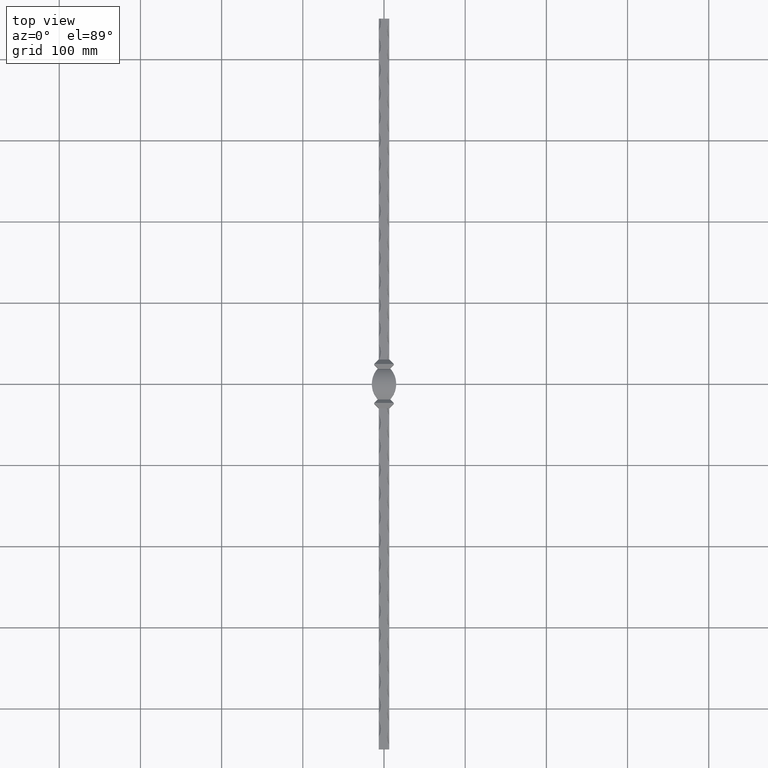
[diagram: clean part render]
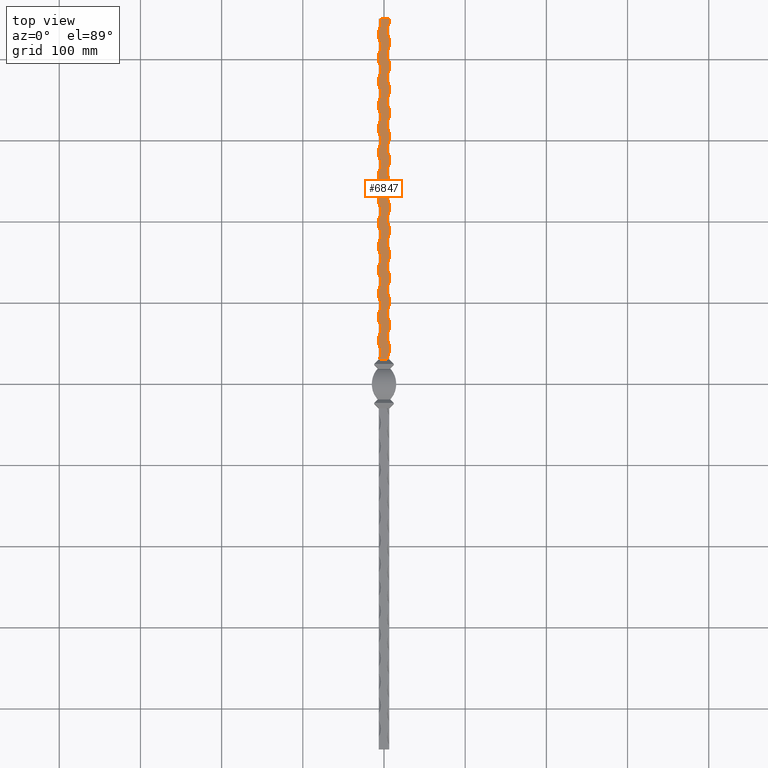
[diagram: same view with one face highlighted and labeled with its STEP entity id]
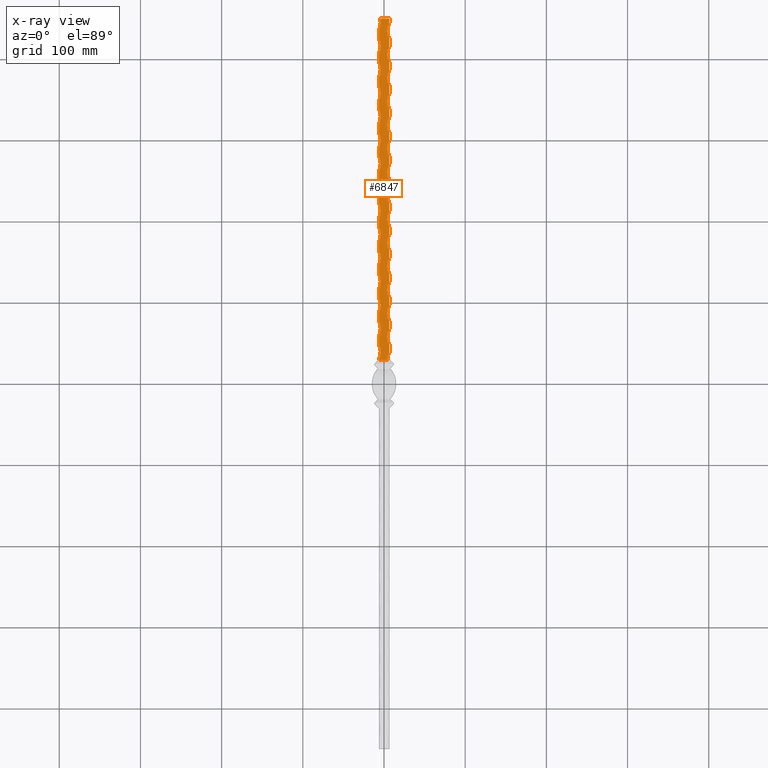
[diagram: x-ray of the same camera — body ghosted, the highlighted face saturated]
A machine part, top view. The second image highlights one B-rep face of the part: STEP entity #6847.
The next image is the same camera in x-ray: the body ghosted, the highlighted face saturated — about 0% of this face is hidden behind the body in this view.
In plain terms, the highlighted planar face has unit normal (0, 0, -1).
Its self-contained STEP definition (entity closure, byte-faithful):
#3 = DIRECTION ( 'NONE',  ( -0.000000000000000000, -0.000000000000000000, 1.000000000000000000 ) ) ;
#54 = DIRECTION ( 'NONE',  ( -1.000000000000000000, 0.000000000000000000, 0.000000000000000000 ) ) ;
#59 = CARTESIAN_POINT ( 'NONE',  ( -6.499999999999999112, 368.0000000000000568, 6.500000000000000888 ) ) ;
#71 = VECTOR ( 'NONE', #3126, 1000.000000000000000 ) ;
#76 = CIRCLE ( 'NONE', #5606, 21.25000000000000000 ) ;
#80 = CARTESIAN_POINT ( 'NONE',  ( 6.500000000000000888, 309.0000000000000000, 6.500000000000000888 ) ) ;
#92 = DIRECTION ( 'NONE',  ( -0.000000000000000000, -0.000000000000000000, 1.000000000000000000 ) ) ;
#112 = DIRECTION ( 'NONE',  ( -0.000000000000000000, -1.000000000000000000, -0.000000000000000000 ) ) ;
#157 = CARTESIAN_POINT ( 'NONE',  ( 6.500000000000000888, 425.0000000000000000, 6.500000000000000888 ) ) ;
#181 = CARTESIAN_POINT ( 'NONE',  ( 6.499999999999999112, 270.9999999999999432, 6.500000000000000888 ) ) ;
#191 = DIRECTION ( 'NONE',  ( -1.000000000000000000, -1.959217102279688941E-15, 0.000000000000000000 ) ) ;
#209 = VECTOR ( 'NONE', #1374, 1000.000000000000000 ) ;
#222 = DIRECTION ( 'NONE',  ( -1.000000000000000000, 0.000000000000000000, 0.000000000000000000 ) ) ;
#237 = CARTESIAN_POINT ( 'NONE',  ( 6.499999999999999112, 328.9999999999999432, 6.500000000000000888 ) ) ;
#292 = VERTEX_POINT ( 'NONE', #15036 ) ;
#304 = CARTESIAN_POINT ( 'NONE',  ( -6.499999999999999112, 450.0000000000000000, 6.500000000000000888 ) ) ;
#308 = PLANE ( 'NONE',  #1086 ) ;
#338 = CARTESIAN_POINT ( 'NONE',  ( 6.499999999999999112, 212.9999999999999716, 6.500000000000000888 ) ) ;
#349 = CARTESIAN_POINT ( 'NONE',  ( -6.499999999999999112, 78.00000000000000000, 6.500000000000000888 ) ) ;
#387 = EDGE_CURVE ( 'NONE', #15503, #3756, #2526, .T. ) ;
#449 = EDGE_CURVE ( 'NONE', #4084, #12454, #6714, .T. ) ;
#460 = CARTESIAN_POINT ( 'NONE',  ( -6.499999999999999112, 165.0000000000000000, 6.500000000000000888 ) ) ;
#493 = ORIENTED_EDGE ( 'NONE', *, *, #5886, .F. ) ;
#581 = CARTESIAN_POINT ( 'NONE',  ( 6.499999999999999112, 241.9999999999999716, 6.500000000000000888 ) ) ;
#626 = EDGE_CURVE ( 'NONE', #8690, #10554, #5386, .T. ) ;
#630 = AXIS2_PLACEMENT_3D ( 'NONE', #15267, #2066, #15361 ) ;
#639 = EDGE_CURVE ( 'NONE', #13878, #6662, #6142, .T. ) ;
#642 = ORIENTED_EDGE ( 'NONE', *, *, #15107, .T. ) ;
#651 = CIRCLE ( 'NONE', #15653, 21.25000000000000000 ) ;
#692 = ORIENTED_EDGE ( 'NONE', *, *, #2809, .T. ) ;
#701 = ORIENTED_EDGE ( 'NONE', *, *, #8345, .T. ) ;
#724 = EDGE_CURVE ( 'NONE', #4471, #4863, #1575, .T. ) ;
#762 = CARTESIAN_POINT ( 'NONE',  ( -25.24999999999999645, 300.0000000000000000, 6.500000000000000888 ) ) ;
#809 = CIRCLE ( 'NONE', #11823, 21.25000000000000000 ) ;
#824 = CARTESIAN_POINT ( 'NONE',  ( -6.499999999999999112, 281.0000000000000000, 6.500000000000000888 ) ) ;
#837 = DIRECTION ( 'NONE',  ( -0.000000000000000000, -1.000000000000000000, -0.000000000000000000 ) ) ;
#849 = CARTESIAN_POINT ( 'NONE',  ( -6.499999999999999112, 450.0000000000000000, 6.500000000000000888 ) ) ;
#850 = CARTESIAN_POINT ( 'NONE',  ( -6.499999999999999112, 115.9999999999999716, 6.500000000000000888 ) ) ;
#895 = VECTOR ( 'NONE', #1279, 1000.000000000000000 ) ;
#912 = AXIS2_PLACEMENT_3D ( 'NONE', #6769, #11501, #12706 ) ;
#965 = AXIS2_PLACEMENT_3D ( 'NONE', #12686, #13906, #1658 ) ;
#974 = DIRECTION ( 'NONE',  ( -0.000000000000000000, -1.000000000000000000, -0.000000000000000000 ) ) ;
#1015 = VERTEX_POINT ( 'NONE', #7886 ) ;
#1051 = DIRECTION ( 'NONE',  ( -1.000000000000000000, 0.000000000000000000, 0.000000000000000000 ) ) ;
#1069 = CARTESIAN_POINT ( 'NONE',  ( -25.24999999999999645, 96.99999999999995737, 6.500000000000000888 ) ) ;
#1086 = AXIS2_PLACEMENT_3D ( 'NONE', #6382, #8811, #1539 ) ;
#1116 = ORIENTED_EDGE ( 'NONE', *, *, #2457, .F. ) ;
#1120 = CARTESIAN_POINT ( 'NONE',  ( -6.000000000000000000, 30.00000000000000000, 6.500000000000000888 ) ) ;
#1146 = DIRECTION ( 'NONE',  ( -0.000000000000000000, -1.000000000000000000, -0.000000000000000000 ) ) ;
#1167 = EDGE_CURVE ( 'NONE', #11740, #11138, #11443, .T. ) ;
#1199 = DIRECTION ( 'NONE',  ( -1.000000000000000000, 0.000000000000000000, 0.000000000000000000 ) ) ;
#1229 = DIRECTION ( 'NONE',  ( -0.000000000000000000, -0.000000000000000000, 1.000000000000000000 ) ) ;
#1253 = VERTEX_POINT ( 'NONE', #14549 ) ;
#1276 = CARTESIAN_POINT ( 'NONE',  ( 25.24999999999997513, 203.0000000000000000, 6.500000000000000888 ) ) ;
#1279 = DIRECTION ( 'NONE',  ( -0.000000000000000000, -1.000000000000000000, -0.000000000000000000 ) ) ;
#1294 = EDGE_CURVE ( 'NONE', #10274, #4008, #4011, .T. ) ;
#1351 = VECTOR ( 'NONE', #12162, 1000.000000000000000 ) ;
#1354 = VECTOR ( 'NONE', #837, 1000.000000000000000 ) ;
#1372 = VECTOR ( 'NONE', #1146, 1000.000000000000000 ) ;
#1374 = DIRECTION ( 'NONE',  ( -0.000000000000000000, -1.000000000000000000, -0.000000000000000000 ) ) ;
#1472 = DIRECTION ( 'NONE',  ( -1.000000000000000000, 0.000000000000000000, 0.000000000000000000 ) ) ;
#1483 = CARTESIAN_POINT ( 'NONE',  ( 6.499999999999999112, 96.99999999999995737, 6.500000000000000888 ) ) ;
#1497 = CARTESIAN_POINT ( 'NONE',  ( 6.500000000000000888, 450.0000000000000000, 6.500000000000000888 ) ) ;
#1502 = VERTEX_POINT ( 'NONE', #7423 ) ;
#1503 = CARTESIAN_POINT ( 'NONE',  ( -6.499999999999999112, 339.0000000000000000, 6.500000000000000888 ) ) ;
#1526 = ORIENTED_EDGE ( 'NONE', *, *, #12989, .T. ) ;
#1539 = DIRECTION ( 'NONE',  ( -1.000000000000000000, 0.000000000000000000, -0.000000000000000000 ) ) ;
#1542 = VERTEX_POINT ( 'NONE', #6064 ) ;
#1575 = CIRCLE ( 'NONE', #14526, 21.25000000000000000 ) ;
#1658 = DIRECTION ( 'NONE',  ( -1.000000000000000000, -5.224578939412504105E-15, 0.000000000000000000 ) ) ;
#1715 = ORIENTED_EDGE ( 'NONE', *, *, #3580, .T. ) ;
#1731 = ORIENTED_EDGE ( 'NONE', *, *, #626, .F. ) ;
#1752 = CARTESIAN_POINT ( 'NONE',  ( 6.500000000000000888, 450.0000000000000000, 6.500000000000000888 ) ) ;
#1770 = LINE ( 'NONE', #13818, #14295 ) ;
#1771 = ORIENTED_EDGE ( 'NONE', *, *, #7672, .T. ) ;
#1827 = ORIENTED_EDGE ( 'NONE', *, *, #8765, .F. ) ;
#1832 = CIRCLE ( 'NONE', #15202, 21.25000000000000000 ) ;
#1839 = VERTEX_POINT ( 'NONE', #5610 ) ;
#1844 = VECTOR ( 'NONE', #2579, 1000.000000000000000 ) ;
#1930 = VERTEX_POINT ( 'NONE', #157 ) ;
#1954 = VECTOR ( 'NONE', #5232, 1000.000000000000000 ) ;
#1962 = CARTESIAN_POINT ( 'NONE',  ( 25.24999999999997513, 29.00000000000000000, 6.500000000000000888 ) ) ;
#2006 = EDGE_CURVE ( 'NONE', #11968, #1542, #4779, .T. ) ;
#2051 = CARTESIAN_POINT ( 'NONE',  ( 25.24999999999997513, 406.0000000000000000, 6.500000000000000888 ) ) ;
#2066 = DIRECTION ( 'NONE',  ( -0.000000000000000000, -0.000000000000000000, 1.000000000000000000 ) ) ;
#2069 = LINE ( 'NONE', #14992, #13652 ) ;
#2078 = EDGE_CURVE ( 'NONE', #1015, #9566, #11611, .T. ) ;
#2091 = ORIENTED_EDGE ( 'NONE', *, *, #8264, .F. ) ;
#2125 = AXIS2_PLACEMENT_3D ( 'NONE', #8965, #11523, #6530 ) ;
#2232 = CARTESIAN_POINT ( 'NONE',  ( 6.500000000000000888, 280.0000000000000000, 6.500000000000000888 ) ) ;
#2234 = CARTESIAN_POINT ( 'NONE',  ( 6.500000000000000888, 450.0000000000000000, 6.500000000000000888 ) ) ;
#2246 = AXIS2_PLACEMENT_3D ( 'NONE', #14334, #14480, #1051 ) ;
#2256 = VECTOR ( 'NONE', #974, 1000.000000000000000 ) ;
#2273 = DIRECTION ( 'NONE',  ( -0.000000000000000000, -1.000000000000000000, -0.000000000000000000 ) ) ;
#2296 = LINE ( 'NONE', #10191, #7811 ) ;
#2310 = VERTEX_POINT ( 'NONE', #850 ) ;
#2359 = ORIENTED_EDGE ( 'NONE', *, *, #12220, .F. ) ;
#2408 = ORIENTED_EDGE ( 'NONE', *, *, #10639, .T. ) ;
#2410 = VERTEX_POINT ( 'NONE', #9920 ) ;
#2426 = DIRECTION ( 'NONE',  ( -1.000000000000000000, -1.306144734853126026E-15, 0.000000000000000000 ) ) ;
#2457 = EDGE_CURVE ( 'NONE', #13269, #1253, #2296, .T. ) ;
#2483 = DIRECTION ( 'NONE',  ( -1.000000000000000000, 0.000000000000000000, 0.000000000000000000 ) ) ;
#2511 = EDGE_CURVE ( 'NONE', #13488, #2410, #15742, .T. ) ;
#2526 = LINE ( 'NONE', #2814, #13166 ) ;
#2579 = DIRECTION ( 'NONE',  ( -0.000000000000000000, -1.000000000000000000, -0.000000000000000000 ) ) ;
#2609 = DIRECTION ( 'NONE',  ( -1.000000000000000000, 0.000000000000000000, 0.000000000000000000 ) ) ;
#2731 = DIRECTION ( 'NONE',  ( -0.000000000000000000, -1.000000000000000000, -0.000000000000000000 ) ) ;
#2761 = CIRCLE ( 'NONE', #2125, 21.25000000000000000 ) ;
#2807 = ORIENTED_EDGE ( 'NONE', *, *, #11674, .F. ) ;
#2809 = EDGE_CURVE ( 'NONE', #12155, #6060, #651, .T. ) ;
#2814 = CARTESIAN_POINT ( 'NONE',  ( -6.499999999999999112, 450.0000000000000000, 6.500000000000000888 ) ) ;
#2933 = ORIENTED_EDGE ( 'NONE', *, *, #639, .F. ) ;
#3013 = VERTEX_POINT ( 'NONE', #7851 ) ;
#3035 = DIRECTION ( 'NONE',  ( 0.000000000000000000, 0.000000000000000000, -1.000000000000000000 ) ) ;
#3052 = AXIS2_PLACEMENT_3D ( 'NONE', #13435, #10112, #6183 ) ;
#3057 = CARTESIAN_POINT ( 'NONE',  ( -6.499999999999999112, 145.0000000000000284, 6.500000000000000888 ) ) ;
#3084 = ORIENTED_EDGE ( 'NONE', *, *, #5824, .F. ) ;
#3086 = DIRECTION ( 'NONE',  ( -1.000000000000000000, 0.000000000000000000, 0.000000000000000000 ) ) ;
#3126 = DIRECTION ( 'NONE',  ( -0.000000000000000000, -1.000000000000000000, -0.000000000000000000 ) ) ;
#3176 = CARTESIAN_POINT ( 'NONE',  ( -6.499999999999999112, 450.0000000000000000, 6.500000000000000888 ) ) ;
#3252 = DIRECTION ( 'NONE',  ( -1.000000000000000000, 0.000000000000000000, 0.000000000000000000 ) ) ;
#3256 = CARTESIAN_POINT ( 'NONE',  ( 6.500000000000000888, 48.00000000000000000, 6.500000000000000888 ) ) ;
#3290 = VECTOR ( 'NONE', #8381, 1000.000000000000000 ) ;
#3300 = CIRCLE ( 'NONE', #14534, 21.24999999999998934 ) ;
#3305 = DIRECTION ( 'NONE',  ( -0.000000000000000000, -0.000000000000000000, 1.000000000000000000 ) ) ;
#3308 = VERTEX_POINT ( 'NONE', #581 ) ;
#3326 = EDGE_CURVE ( 'NONE', #14276, #12019, #3856, .T. ) ;
#3379 = DIRECTION ( 'NONE',  ( 1.000000000000000000, -0.000000000000000000, 0.000000000000000000 ) ) ;
#3398 = EDGE_CURVE ( 'NONE', #13070, #7659, #9773, .T. ) ;
#3468 = VECTOR ( 'NONE', #4028, 1000.000000000000000 ) ;
#3533 = EDGE_CURVE ( 'NONE', #12033, #1502, #12038, .T. ) ;
#3580 = EDGE_CURVE ( 'NONE', #8197, #11240, #13938, .T. ) ;
#3653 = AXIS2_PLACEMENT_3D ( 'NONE', #9310, #14240, #15295 ) ;
#3685 = DIRECTION ( 'NONE',  ( -0.000000000000000000, -0.000000000000000000, 1.000000000000000000 ) ) ;
#3711 = CARTESIAN_POINT ( 'NONE',  ( 6.499999999999999112, 183.9999999999999716, 6.500000000000000888 ) ) ;
#3719 = CARTESIAN_POINT ( 'NONE',  ( -6.499999999999999112, 49.00000000000000000, 6.500000000000000888 ) ) ;
#3728 = ORIENTED_EDGE ( 'NONE', *, *, #8102, .F. ) ;
#3731 = AXIS2_PLACEMENT_3D ( 'NONE', #7542, #8831, #2609 ) ;
#3755 = EDGE_CURVE ( 'NONE', #4084, #2410, #3842, .T. ) ;
#3756 = VERTEX_POINT ( 'NONE', #349 ) ;
#3791 = ORIENTED_EDGE ( 'NONE', *, *, #449, .T. ) ;
#3817 = VECTOR ( 'NONE', #15463, 1000.000000000000000 ) ;
#3842 = CIRCLE ( 'NONE', #14554, 21.24999999999998934 ) ;
#3856 = LINE ( 'NONE', #849, #8248 ) ;
#3857 = VECTOR ( 'NONE', #112, 1000.000000000000000 ) ;
#3863 = VERTEX_POINT ( 'NONE', #3057 ) ;
#3889 = DIRECTION ( 'NONE',  ( 0.000000000000000000, 0.000000000000000000, -1.000000000000000000 ) ) ;
#3895 = CARTESIAN_POINT ( 'NONE',  ( 6.499999999999999112, 300.0000000000000000, 6.500000000000000888 ) ) ;
#3969 = DIRECTION ( 'NONE',  ( -0.000000000000000000, -0.000000000000000000, 1.000000000000000000 ) ) ;
#4008 = VERTEX_POINT ( 'NONE', #14043 ) ;
#4011 = LINE ( 'NONE', #1497, #1954 ) ;
#4028 = DIRECTION ( 'NONE',  ( -0.000000000000000000, -1.000000000000000000, -0.000000000000000000 ) ) ;
#4036 = EDGE_CURVE ( 'NONE', #1930, #10912, #4638, .T. ) ;
#4080 = DIRECTION ( 'NONE',  ( 0.000000000000000000, 0.000000000000000000, -1.000000000000000000 ) ) ;
#4084 = VERTEX_POINT ( 'NONE', #10502 ) ;
#4108 = ORIENTED_EDGE ( 'NONE', *, *, #14766, .T. ) ;
#4137 = ORIENTED_EDGE ( 'NONE', *, *, #5350, .T. ) ;
#4183 = VERTEX_POINT ( 'NONE', #8720 ) ;
#4206 = CIRCLE ( 'NONE', #12635, 21.25000000000000000 ) ;
#4208 = EDGE_CURVE ( 'NONE', #7231, #9566, #12400, .T. ) ;
#4258 = ORIENTED_EDGE ( 'NONE', *, *, #1294, .F. ) ;
#4343 = CARTESIAN_POINT ( 'NONE',  ( 6.500000000000000888, 450.0000000000000000, 6.500000000000000888 ) ) ;
#4465 = EDGE_CURVE ( 'NONE', #11968, #1502, #809, .T. ) ;
#4471 = VERTEX_POINT ( 'NONE', #11552 ) ;
#4531 = CARTESIAN_POINT ( 'NONE',  ( 6.500000000000000888, 106.0000000000000142, 6.500000000000000888 ) ) ;
#4626 = CARTESIAN_POINT ( 'NONE',  ( -6.499999999999999112, 450.0000000000000000, 6.500000000000000888 ) ) ;
#4638 = LINE ( 'NONE', #15311, #13360 ) ;
#4653 = CARTESIAN_POINT ( 'NONE',  ( 6.500000000000000888, 222.0000000000000000, 6.500000000000000888 ) ) ;
#4765 = CIRCLE ( 'NONE', #9896, 21.24999999999998934 ) ;
#4779 = LINE ( 'NONE', #6072, #7991 ) ;
#4827 = VECTOR ( 'NONE', #5070, 1000.000000000000000 ) ;
#4863 = VERTEX_POINT ( 'NONE', #3711 ) ;
#4904 = CARTESIAN_POINT ( 'NONE',  ( -25.24999999999999645, 154.9999999999999716, 6.500000000000000888 ) ) ;
#4954 = CARTESIAN_POINT ( 'NONE',  ( -6.499999999999999112, 290.0000000000000000, 6.500000000000000888 ) ) ;
#5025 = DIRECTION ( 'NONE',  ( -0.000000000000000000, -1.000000000000000000, -0.000000000000000000 ) ) ;
#5035 = ORIENTED_EDGE ( 'NONE', *, *, #4036, .F. ) ;
#5070 = DIRECTION ( 'NONE',  ( -0.000000000000000000, -1.000000000000000000, -0.000000000000000000 ) ) ;
#5089 = CIRCLE ( 'NONE', #10731, 21.25000000000000000 ) ;
#5129 = ORIENTED_EDGE ( 'NONE', *, *, #9659, .F. ) ;
#5219 = VERTEX_POINT ( 'NONE', #9395 ) ;
#5232 = DIRECTION ( 'NONE',  ( -0.000000000000000000, -1.000000000000000000, -0.000000000000000000 ) ) ;
#5318 = CARTESIAN_POINT ( 'NONE',  ( -25.24999999999999645, 212.9999999999999716, 6.500000000000000888 ) ) ;
#5334 = DIRECTION ( 'NONE',  ( -1.000000000000000000, 0.000000000000000000, 0.000000000000000000 ) ) ;
#5349 = VERTEX_POINT ( 'NONE', #3895 ) ;
#5350 = EDGE_CURVE ( 'NONE', #7871, #10107, #14278, .T. ) ;
#5370 = DIRECTION ( 'NONE',  ( -0.000000000000000000, -1.000000000000000000, -0.000000000000000000 ) ) ;
#5386 = LINE ( 'NONE', #1752, #10309 ) ;
#5391 = DIRECTION ( 'NONE',  ( 0.000000000000000000, 0.000000000000000000, -1.000000000000000000 ) ) ;
#5511 = AXIS2_PLACEMENT_3D ( 'NONE', #4904, #9660, #9612 ) ;
#5512 = ORIENTED_EDGE ( 'NONE', *, *, #2511, .T. ) ;
#5535 = ORIENTED_EDGE ( 'NONE', *, *, #15704, .T. ) ;
#5582 = CARTESIAN_POINT ( 'NONE',  ( -6.499999999999999112, 310.0000000000000568, 6.500000000000000888 ) ) ;
#5606 = AXIS2_PLACEMENT_3D ( 'NONE', #11376, #4080, #5334 ) ;
#5610 = CARTESIAN_POINT ( 'NONE',  ( 6.500000000000000888, 251.0000000000000000, 6.500000000000000888 ) ) ;
#5628 = DIRECTION ( 'NONE',  ( -0.000000000000000000, -1.000000000000000000, -0.000000000000000000 ) ) ;
#5634 = CARTESIAN_POINT ( 'NONE',  ( 6.500000000000000888, 396.0000000000000000, 6.500000000000000888 ) ) ;
#5689 = DIRECTION ( 'NONE',  ( -1.000000000000000000, 0.000000000000000000, 0.000000000000000000 ) ) ;
#5699 = ORIENTED_EDGE ( 'NONE', *, *, #10051, .F. ) ;
#5701 = DIRECTION ( 'NONE',  ( -0.000000000000000000, -0.000000000000000000, 1.000000000000000000 ) ) ;
#5804 = CIRCLE ( 'NONE', #3052, 21.25000000000000000 ) ;
#5824 = EDGE_CURVE ( 'NONE', #10230, #12019, #13122, .T. ) ;
#5847 = ORIENTED_EDGE ( 'NONE', *, *, #387, .T. ) ;
#5848 = EDGE_CURVE ( 'NONE', #9980, #13878, #12356, .T. ) ;
#5860 = CARTESIAN_POINT ( 'NONE',  ( 6.499999999999999112, 154.9999999999999716, 6.500000000000000888 ) ) ;
#5879 = ORIENTED_EDGE ( 'NONE', *, *, #8031, .F. ) ;
#5886 = EDGE_CURVE ( 'NONE', #3013, #9980, #9122, .T. ) ;
#5903 = VERTEX_POINT ( 'NONE', #237 ) ;
#6015 = AXIS2_PLACEMENT_3D ( 'NONE', #6264, #92, #2426 ) ;
#6052 = DIRECTION ( 'NONE',  ( -0.000000000000000000, -1.000000000000000000, -0.000000000000000000 ) ) ;
#6060 = VERTEX_POINT ( 'NONE', #338 ) ;
#6064 = CARTESIAN_POINT ( 'NONE',  ( 6.499999999999999112, 38.99999999999995026, 6.500000000000000888 ) ) ;
#6072 = CARTESIAN_POINT ( 'NONE',  ( 6.500000000000000888, 450.0000000000000000, 6.500000000000000888 ) ) ;
#6120 = ORIENTED_EDGE ( 'NONE', *, *, #7973, .T. ) ;
#6142 = LINE ( 'NONE', #4343, #15414 ) ;
#6172 = DIRECTION ( 'NONE',  ( -1.000000000000000000, -5.224578939412504105E-15, 0.000000000000000000 ) ) ;
#6183 = DIRECTION ( 'NONE',  ( -1.000000000000000000, 0.000000000000000000, 0.000000000000000000 ) ) ;
#6241 = ORIENTED_EDGE ( 'NONE', *, *, #13613, .T. ) ;
#6245 = AXIS2_PLACEMENT_3D ( 'NONE', #8489, #1229, #6172 ) ;
#6264 = CARTESIAN_POINT ( 'NONE',  ( -25.24999999999999645, 183.9999999999999716, 6.500000000000000888 ) ) ;
#6369 = EDGE_CURVE ( 'NONE', #8197, #7659, #8542, .T. ) ;
#6382 = CARTESIAN_POINT ( 'NONE',  ( -6.499999999999999112, 450.0000000000000000, 6.500000000000000888 ) ) ;
#6435 = DIRECTION ( 'NONE',  ( -1.000000000000000000, -1.306144734853126026E-15, 0.000000000000000000 ) ) ;
#6530 = DIRECTION ( 'NONE',  ( -1.000000000000000000, 0.000000000000000000, 0.000000000000000000 ) ) ;
#6553 = CARTESIAN_POINT ( 'NONE',  ( 25.24999999999997513, 232.0000000000000000, 6.500000000000000888 ) ) ;
#6554 = LINE ( 'NONE', #8642, #11865 ) ;
#6560 = DIRECTION ( 'NONE',  ( -0.000000000000000000, -1.000000000000000000, -0.000000000000000000 ) ) ;
#6578 = DIRECTION ( 'NONE',  ( -0.000000000000000000, -1.000000000000000000, -0.000000000000000000 ) ) ;
#6598 = CARTESIAN_POINT ( 'NONE',  ( 25.24999999999997513, 290.0000000000000568, 6.500000000000000888 ) ) ;
#6619 = AXIS2_PLACEMENT_3D ( 'NONE', #1069, #5701, #8196 ) ;
#6649 = ORIENTED_EDGE ( 'NONE', *, *, #10405, .T. ) ;
#6662 = VERTEX_POINT ( 'NONE', #14431 ) ;
#6714 = LINE ( 'NONE', #8592, #4827 ) ;
#6739 = CARTESIAN_POINT ( 'NONE',  ( -6.499999999999999112, 318.9999999999999432, 6.500000000000000888 ) ) ;
#6769 = CARTESIAN_POINT ( 'NONE',  ( 25.24999999999997513, 319.0000000000000000, 6.500000000000000888 ) ) ;
#6824 = CARTESIAN_POINT ( 'NONE',  ( -6.499999999999999112, 232.0000000000000000, 6.500000000000000888 ) ) ;
#6847 = ADVANCED_FACE ( 'NONE', ( #12630 ), #308, .F. ) ;
#6850 = AXIS2_PLACEMENT_3D ( 'NONE', #13461, #3685, #1472 ) ;
#6875 = EDGE_CURVE ( 'NONE', #12033, #14332, #2761, .T. ) ;
#6882 = CARTESIAN_POINT ( 'NONE',  ( -6.499999999999999112, 450.0000000000000000, 6.500000000000000888 ) ) ;
#6987 = DIRECTION ( 'NONE',  ( -1.000000000000000000, -5.224578939412504105E-15, 0.000000000000000000 ) ) ;
#7013 = CARTESIAN_POINT ( 'NONE',  ( -4.596610447677146105, 450.0000000000000000, 6.500000000000000888 ) ) ;
#7120 = CIRCLE ( 'NONE', #912, 21.25000000000000000 ) ;
#7121 = CARTESIAN_POINT ( 'NONE',  ( 6.500000000000000888, 450.0000000000000000, 6.500000000000000888 ) ) ;
#7175 = CARTESIAN_POINT ( 'NONE',  ( -25.24999999999999645, 328.9999999999999432, 6.500000000000000888 ) ) ;
#7231 = VERTEX_POINT ( 'NONE', #9906 ) ;
#7233 = CARTESIAN_POINT ( 'NONE',  ( -6.499999999999999112, 86.99999999999998579, 6.500000000000000888 ) ) ;
#7238 = VERTEX_POINT ( 'NONE', #80 ) ;
#7333 = VERTEX_POINT ( 'NONE', #15718 ) ;
#7423 = CARTESIAN_POINT ( 'NONE',  ( 6.499999999999999112, 67.99999999999994316, 6.500000000000000888 ) ) ;
#7469 = CARTESIAN_POINT ( 'NONE',  ( -25.24999999999999645, 67.99999999999994316, 6.500000000000000888 ) ) ;
#7480 = VECTOR ( 'NONE', #3379, 1000.000000000000000 ) ;
#7542 = CARTESIAN_POINT ( 'NONE',  ( -25.24999999999999645, 38.99999999999995026, 6.500000000000000888 ) ) ;
#7551 = EDGE_CURVE ( 'NONE', #13269, #4008, #9392, .T. ) ;
#7577 = VERTEX_POINT ( 'NONE', #4653 ) ;
#7583 = CARTESIAN_POINT ( 'NONE',  ( -6.499999999999999112, 194.0000000000000000, 6.500000000000000888 ) ) ;
#7659 = VERTEX_POINT ( 'NONE', #3719 ) ;
#7672 = EDGE_CURVE ( 'NONE', #14156, #12872, #5804, .T. ) ;
#7738 = DIRECTION ( 'NONE',  ( -0.000000000000000000, -1.000000000000000000, -0.000000000000000000 ) ) ;
#7767 = VECTOR ( 'NONE', #14082, 1000.000000000000000 ) ;
#7781 = AXIS2_PLACEMENT_3D ( 'NONE', #7469, #12149, #191 ) ;
#7787 = VERTEX_POINT ( 'NONE', #7877 ) ;
#7802 = ORIENTED_EDGE ( 'NONE', *, *, #3755, .F. ) ;
#7811 = VECTOR ( 'NONE', #6578, 1000.000000000000000 ) ;
#7851 = CARTESIAN_POINT ( 'NONE',  ( -6.499999999999999112, 435.0000000000000000, 6.500000000000000888 ) ) ;
#7871 = VERTEX_POINT ( 'NONE', #10369 ) ;
#7877 = CARTESIAN_POINT ( 'NONE',  ( -6.499999999999999112, 107.0000000000000142, 6.500000000000000888 ) ) ;
#7886 = CARTESIAN_POINT ( 'NONE',  ( -6.499999999999999112, 348.0000000000000000, 6.500000000000000888 ) ) ;
#7938 = CARTESIAN_POINT ( 'NONE',  ( -6.499999999999999112, 450.0000000000000000, 6.500000000000000888 ) ) ;
#7957 = CARTESIAN_POINT ( 'NONE',  ( -6.499999999999999112, 450.0000000000000000, 6.500000000000000888 ) ) ;
#7973 = EDGE_CURVE ( 'NONE', #7238, #5903, #7120, .T. ) ;
#7978 = CIRCLE ( 'NONE', #965, 21.24999999999998934 ) ;
#7991 = VECTOR ( 'NONE', #5025, 1000.000000000000000 ) ;
#8000 = ORIENTED_EDGE ( 'NONE', *, *, #3326, .T. ) ;
#8031 = EDGE_CURVE ( 'NONE', #15503, #7787, #11879, .T. ) ;
#8102 = EDGE_CURVE ( 'NONE', #7238, #5349, #10354, .T. ) ;
#8125 = EDGE_CURVE ( 'NONE', #1839, #10554, #12434, .T. ) ;
#8196 = DIRECTION ( 'NONE',  ( -1.000000000000000000, -6.530723674265630131E-16, 0.000000000000000000 ) ) ;
#8197 = VERTEX_POINT ( 'NONE', #1120 ) ;
#8243 = AXIS2_PLACEMENT_3D ( 'NONE', #11277, #3969, #11220 ) ;
#8248 = VECTOR ( 'NONE', #12907, 1000.000000000000000 ) ;
#8259 = ORIENTED_EDGE ( 'NONE', *, *, #8125, .T. ) ;
#8264 = EDGE_CURVE ( 'NONE', #13488, #9301, #3300, .T. ) ;
#8310 = ORIENTED_EDGE ( 'NONE', *, *, #9670, .F. ) ;
#8345 = EDGE_CURVE ( 'NONE', #1930, #6662, #76, .T. ) ;
#8362 = ORIENTED_EDGE ( 'NONE', *, *, #4208, .T. ) ;
#8381 = DIRECTION ( 'NONE',  ( -0.000000000000000000, -1.000000000000000000, -0.000000000000000000 ) ) ;
#8452 = DIRECTION ( 'NONE',  ( -1.000000000000000000, -5.224578939412504105E-15, 0.000000000000000000 ) ) ;
#8460 = CARTESIAN_POINT ( 'NONE',  ( -6.499999999999999112, 174.0000000000000284, 6.500000000000000888 ) ) ;
#8489 = CARTESIAN_POINT ( 'NONE',  ( -25.24999999999999645, 270.9999999999999432, 6.500000000000000888 ) ) ;
#8542 = CIRCLE ( 'NONE', #3731, 21.24999999999998934 ) ;
#8546 = DIRECTION ( 'NONE',  ( 0.000000000000000000, 0.000000000000000000, -1.000000000000000000 ) ) ;
#8592 = CARTESIAN_POINT ( 'NONE',  ( -6.499999999999999112, 450.0000000000000000, 6.500000000000000888 ) ) ;
#8618 = CARTESIAN_POINT ( 'NONE',  ( 6.500000000000000888, 193.0000000000000000, 6.500000000000000888 ) ) ;
#8622 = CARTESIAN_POINT ( 'NONE',  ( -6.499999999999999112, 450.0000000000000000, 6.500000000000000888 ) ) ;
#8633 = EDGE_CURVE ( 'NONE', #292, #1253, #14513, .T. ) ;
#8634 = ORIENTED_EDGE ( 'NONE', *, *, #13510, .T. ) ;
#8642 = CARTESIAN_POINT ( 'NONE',  ( 6.500000000000000888, 450.0000000000000000, 6.500000000000000888 ) ) ;
#8688 = CIRCLE ( 'NONE', #11564, 21.25000000000000000 ) ;
#8690 = VERTEX_POINT ( 'NONE', #2232 ) ;
#8692 = DIRECTION ( 'NONE',  ( -0.000000000000000000, -0.000000000000000000, 1.000000000000000000 ) ) ;
#8693 = DIRECTION ( 'NONE',  ( 0.000000000000000000, 0.000000000000000000, -1.000000000000000000 ) ) ;
#8720 = CARTESIAN_POINT ( 'NONE',  ( -6.499999999999999112, 426.0000000000000568, 6.500000000000000888 ) ) ;
#8738 = EDGE_CURVE ( 'NONE', #14156, #14332, #6554, .T. ) ;
#8765 = EDGE_CURVE ( 'NONE', #15465, #12454, #15259, .T. ) ;
#8799 = LINE ( 'NONE', #12380, #3468 ) ;
#8811 = DIRECTION ( 'NONE',  ( 0.000000000000000000, 0.000000000000000000, -1.000000000000000000 ) ) ;
#8831 = DIRECTION ( 'NONE',  ( -0.000000000000000000, -0.000000000000000000, 1.000000000000000000 ) ) ;
#8884 = DIRECTION ( 'NONE',  ( -0.000000000000000000, -0.000000000000000000, 1.000000000000000000 ) ) ;
#8965 = CARTESIAN_POINT ( 'NONE',  ( 25.24999999999997513, 87.00000000000001421, 6.500000000000000888 ) ) ;
#9122 = CIRCLE ( 'NONE', #6850, 21.24999999999998934 ) ;
#9211 = CARTESIAN_POINT ( 'NONE',  ( -6.499999999999999112, 252.0000000000000000, 6.500000000000000888 ) ) ;
#9226 = ORIENTED_EDGE ( 'NONE', *, *, #2078, .F. ) ;
#9263 = DIRECTION ( 'NONE',  ( 0.000000000000000000, 0.000000000000000000, -1.000000000000000000 ) ) ;
#9267 = LINE ( 'NONE', #7938, #7767 ) ;
#9301 = VERTEX_POINT ( 'NONE', #9211 ) ;
#9303 = ORIENTED_EDGE ( 'NONE', *, *, #7551, .T. ) ;
#9310 = CARTESIAN_POINT ( 'NONE',  ( 25.24999999999997513, 377.0000000000000000, 6.500000000000000888 ) ) ;
#9322 = CARTESIAN_POINT ( 'NONE',  ( 6.500000000000000888, 77.00000000000001421, 6.500000000000000888 ) ) ;
#9392 = CIRCLE ( 'NONE', #3653, 21.25000000000000000 ) ;
#9395 = CARTESIAN_POINT ( 'NONE',  ( -6.499999999999999112, 136.0000000000000000, 6.500000000000000888 ) ) ;
#9476 = AXIS2_PLACEMENT_3D ( 'NONE', #2051, #9263, #3252 ) ;
#9566 = VERTEX_POINT ( 'NONE', #59 ) ;
#9610 = CARTESIAN_POINT ( 'NONE',  ( -6.499999999999999112, 29.99999999999997158, 6.500000000000000888 ) ) ;
#9612 = DIRECTION ( 'NONE',  ( -1.000000000000000000, 1.306144734853126026E-15, 0.000000000000000000 ) ) ;
#9659 = EDGE_CURVE ( 'NONE', #4471, #13655, #10697, .T. ) ;
#9660 = DIRECTION ( 'NONE',  ( -0.000000000000000000, -0.000000000000000000, 1.000000000000000000 ) ) ;
#9662 = DIRECTION ( 'NONE',  ( -0.000000000000000000, -1.000000000000000000, -0.000000000000000000 ) ) ;
#9670 = EDGE_CURVE ( 'NONE', #292, #5903, #8799, .T. ) ;
#9684 = AXIS2_PLACEMENT_3D ( 'NONE', #762, #3305, #6987 ) ;
#9729 = LINE ( 'NONE', #15617, #1372 ) ;
#9748 = CARTESIAN_POINT ( 'NONE',  ( 25.24999999999997513, 174.0000000000000284, 6.500000000000000888 ) ) ;
#9773 = LINE ( 'NONE', #3176, #71 ) ;
#9784 = ORIENTED_EDGE ( 'NONE', *, *, #6369, .F. ) ;
#9806 = ORIENTED_EDGE ( 'NONE', *, *, #10210, .F. ) ;
#9836 = ORIENTED_EDGE ( 'NONE', *, *, #8633, .T. ) ;
#9894 = ORIENTED_EDGE ( 'NONE', *, *, #12536, .F. ) ;
#9896 = AXIS2_PLACEMENT_3D ( 'NONE', #12534, #8884, #14916 ) ;
#9906 = CARTESIAN_POINT ( 'NONE',  ( -6.499999999999999112, 376.9999999999999432, 6.500000000000000888 ) ) ;
#9920 = CARTESIAN_POINT ( 'NONE',  ( -6.499999999999999112, 223.0000000000000000, 6.500000000000000888 ) ) ;
#9980 = VERTEX_POINT ( 'NONE', #7013 ) ;
#10051 = EDGE_CURVE ( 'NONE', #3863, #13010, #13156, .T. ) ;
#10096 = ORIENTED_EDGE ( 'NONE', *, *, #5848, .F. ) ;
#10107 = VERTEX_POINT ( 'NONE', #10819 ) ;
#10112 = DIRECTION ( 'NONE',  ( 0.000000000000000000, 0.000000000000000000, -1.000000000000000000 ) ) ;
#10119 = EDGE_CURVE ( 'NONE', #2310, #7787, #15416, .T. ) ;
#10180 = AXIS2_PLACEMENT_3D ( 'NONE', #7175, #3, #8452 ) ;
#10185 = AXIS2_PLACEMENT_3D ( 'NONE', #14497, #8546, #54 ) ;
#10191 = CARTESIAN_POINT ( 'NONE',  ( 6.500000000000000888, 450.0000000000000000, 6.500000000000000888 ) ) ;
#10210 = EDGE_CURVE ( 'NONE', #1839, #3308, #1770, .T. ) ;
#10230 = VERTEX_POINT ( 'NONE', #14209 ) ;
#10248 = ORIENTED_EDGE ( 'NONE', *, *, #10462, .F. ) ;
#10274 = VERTEX_POINT ( 'NONE', #5634 ) ;
#10295 = ORIENTED_EDGE ( 'NONE', *, *, #6875, .T. ) ;
#10309 = VECTOR ( 'NONE', #11627, 1000.000000000000000 ) ;
#10339 = CARTESIAN_POINT ( 'NONE',  ( -6.499999999999999112, 57.99999999999997868, 6.500000000000000888 ) ) ;
#10354 = LINE ( 'NONE', #7121, #3857 ) ;
#10369 = CARTESIAN_POINT ( 'NONE',  ( -6.499999999999999112, 406.0000000000000000, 6.500000000000000888 ) ) ;
#10405 = EDGE_CURVE ( 'NONE', #1015, #11138, #14651, .T. ) ;
#10415 = EDGE_CURVE ( 'NONE', #7577, #6060, #9729, .T. ) ;
#10462 = EDGE_CURVE ( 'NONE', #12155, #4863, #10672, .T. ) ;
#10463 = LINE ( 'NONE', #7957, #1354 ) ;
#10502 = CARTESIAN_POINT ( 'NONE',  ( -6.499999999999999112, 203.0000000000000000, 6.500000000000000888 ) ) ;
#10554 = VERTEX_POINT ( 'NONE', #181 ) ;
#10562 = ORIENTED_EDGE ( 'NONE', *, *, #2006, .F. ) ;
#10573 = ORIENTED_EDGE ( 'NONE', *, *, #10899, .F. ) ;
#10639 = EDGE_CURVE ( 'NONE', #7333, #13655, #4206, .T. ) ;
#10672 = LINE ( 'NONE', #11835, #3817 ) ;
#10697 = LINE ( 'NONE', #11281, #13170 ) ;
#10731 = AXIS2_PLACEMENT_3D ( 'NONE', #1962, #13550, #222 ) ;
#10745 = ORIENTED_EDGE ( 'NONE', *, *, #3533, .F. ) ;
#10811 = EDGE_CURVE ( 'NONE', #10274, #10912, #13696, .T. ) ;
#10819 = CARTESIAN_POINT ( 'NONE',  ( -6.499999999999999112, 397.0000000000000000, 6.500000000000000888 ) ) ;
#10899 = EDGE_CURVE ( 'NONE', #14276, #11683, #11253, .T. ) ;
#10912 = VERTEX_POINT ( 'NONE', #11761 ) ;
#10929 = CARTESIAN_POINT ( 'NONE',  ( 6.500000000000000888, 450.0000000000000000, 6.500000000000000888 ) ) ;
#11044 = CIRCLE ( 'NONE', #630, 21.24999999999998934 ) ;
#11107 = EDGE_LOOP ( 'NONE', ( #9784, #1715, #4108, #10562, #12704, #10745, #10295, #13099, #1771, #11577, #2408, #5129, #13026, #10248, #692, #14010, #5535, #9806, #8259, #1731, #13665, #3728, #6120, #8310, #9836, #1116, #9303, #4258, #13494, #5035, #701, #2933, #10096, #493, #12177, #2359, #4137, #9894, #8362, #9226, #6649, #14702, #1526, #10573, #8000, #3084, #642, #2091, #5512, #7802, #3791, #1827, #6241, #5699, #8634, #2807, #14123, #5879, #5847, #13217, #13793 ) ) ;
#11138 = VERTEX_POINT ( 'NONE', #1503 ) ;
#11220 = DIRECTION ( 'NONE',  ( -1.000000000000000000, -5.224578939412504105E-15, 0.000000000000000000 ) ) ;
#11240 = VERTEX_POINT ( 'NONE', #13915 ) ;
#11253 = CIRCLE ( 'NONE', #9684, 21.24999999999998934 ) ;
#11277 = CARTESIAN_POINT ( 'NONE',  ( -25.24999999999999645, 358.0000000000000000, 6.500000000000000888 ) ) ;
#11281 = CARTESIAN_POINT ( 'NONE',  ( 6.500000000000000888, 450.0000000000000000, 6.500000000000000888 ) ) ;
#11376 = CARTESIAN_POINT ( 'NONE',  ( 25.24999999999997513, 435.0000000000000000, 6.500000000000000888 ) ) ;
#11412 = CARTESIAN_POINT ( 'NONE',  ( -6.499999999999999112, 450.0000000000000000, 6.500000000000000888 ) ) ;
#11443 = CIRCLE ( 'NONE', #10180, 21.24999999999998934 ) ;
#11488 = CARTESIAN_POINT ( 'NONE',  ( 6.500000000000000888, 450.0000000000000000, 6.500000000000000888 ) ) ;
#11501 = DIRECTION ( 'NONE',  ( 0.000000000000000000, 0.000000000000000000, -1.000000000000000000 ) ) ;
#11523 = DIRECTION ( 'NONE',  ( 0.000000000000000000, 0.000000000000000000, -1.000000000000000000 ) ) ;
#11552 = CARTESIAN_POINT ( 'NONE',  ( 6.500000000000000888, 164.0000000000000000, 6.500000000000000888 ) ) ;
#11564 = AXIS2_PLACEMENT_3D ( 'NONE', #6598, #12525, #5689 ) ;
#11577 = ORIENTED_EDGE ( 'NONE', *, *, #14268, .F. ) ;
#11611 = CIRCLE ( 'NONE', #8243, 21.24999999999998934 ) ;
#11627 = DIRECTION ( 'NONE',  ( -0.000000000000000000, -1.000000000000000000, -0.000000000000000000 ) ) ;
#11649 = EDGE_CURVE ( 'NONE', #3013, #4183, #10463, .T. ) ;
#11674 = EDGE_CURVE ( 'NONE', #2310, #5219, #11044, .T. ) ;
#11683 = VERTEX_POINT ( 'NONE', #5582 ) ;
#11740 = VERTEX_POINT ( 'NONE', #6739 ) ;
#11761 = CARTESIAN_POINT ( 'NONE',  ( 6.499999999999999112, 416.0000000000000000, 6.500000000000000888 ) ) ;
#11823 = AXIS2_PLACEMENT_3D ( 'NONE', #13865, #3035, #3086 ) ;
#11835 = CARTESIAN_POINT ( 'NONE',  ( 6.500000000000000888, 450.0000000000000000, 6.500000000000000888 ) ) ;
#11865 = VECTOR ( 'NONE', #6052, 1000.000000000000000 ) ;
#11879 = CIRCLE ( 'NONE', #6619, 21.24999999999998934 ) ;
#11968 = VERTEX_POINT ( 'NONE', #3256 ) ;
#11982 = CARTESIAN_POINT ( 'NONE',  ( -6.499999999999999112, 450.0000000000000000, 6.500000000000000888 ) ) ;
#12019 = VERTEX_POINT ( 'NONE', #824 ) ;
#12033 = VERTEX_POINT ( 'NONE', #9322 ) ;
#12038 = LINE ( 'NONE', #2234, #3290 ) ;
#12091 = LINE ( 'NONE', #4626, #1844 ) ;
#12149 = DIRECTION ( 'NONE',  ( -0.000000000000000000, -0.000000000000000000, 1.000000000000000000 ) ) ;
#12155 = VERTEX_POINT ( 'NONE', #8618 ) ;
#12162 = DIRECTION ( 'NONE',  ( 1.000000000000000000, 0.000000000000000000, 0.000000000000000000 ) ) ;
#12177 = ORIENTED_EDGE ( 'NONE', *, *, #11649, .T. ) ;
#12219 = VECTOR ( 'NONE', #2731, 1000.000000000000000 ) ;
#12220 = EDGE_CURVE ( 'NONE', #7871, #4183, #4765, .T. ) ;
#12356 = LINE ( 'NONE', #304, #1351 ) ;
#12380 = CARTESIAN_POINT ( 'NONE',  ( 6.500000000000000888, 450.0000000000000000, 6.500000000000000888 ) ) ;
#12396 = CARTESIAN_POINT ( 'NONE',  ( 6.500000000000000888, 367.0000000000000000, 6.500000000000000888 ) ) ;
#12400 = LINE ( 'NONE', #8622, #12793 ) ;
#12434 = CIRCLE ( 'NONE', #10185, 21.25000000000000000 ) ;
#12454 = VERTEX_POINT ( 'NONE', #7583 ) ;
#12525 = DIRECTION ( 'NONE',  ( 0.000000000000000000, 0.000000000000000000, -1.000000000000000000 ) ) ;
#12533 = VECTOR ( 'NONE', #5370, 1000.000000000000000 ) ;
#12534 = CARTESIAN_POINT ( 'NONE',  ( -25.24999999999999645, 416.0000000000000000, 6.500000000000000888 ) ) ;
#12536 = EDGE_CURVE ( 'NONE', #7231, #10107, #7978, .T. ) ;
#12541 = CARTESIAN_POINT ( 'NONE',  ( -6.499999999999999112, 450.0000000000000000, 6.500000000000000888 ) ) ;
#12630 = FACE_OUTER_BOUND ( 'NONE', #11107, .T. ) ;
#12635 = AXIS2_PLACEMENT_3D ( 'NONE', #13778, #3889, #13721 ) ;
#12686 = CARTESIAN_POINT ( 'NONE',  ( -25.24999999999999645, 386.9999999999999432, 6.500000000000000888 ) ) ;
#12698 = LINE ( 'NONE', #6882, #2256 ) ;
#12704 = ORIENTED_EDGE ( 'NONE', *, *, #4465, .T. ) ;
#12706 = DIRECTION ( 'NONE',  ( -1.000000000000000000, 0.000000000000000000, 0.000000000000000000 ) ) ;
#12793 = VECTOR ( 'NONE', #13453, 1000.000000000000000 ) ;
#12866 = EDGE_CURVE ( 'NONE', #13070, #3756, #14967, .T. ) ;
#12872 = VERTEX_POINT ( 'NONE', #14682 ) ;
#12907 = DIRECTION ( 'NONE',  ( -0.000000000000000000, -1.000000000000000000, -0.000000000000000000 ) ) ;
#12969 = VECTOR ( 'NONE', #2273, 1000.000000000000000 ) ;
#12989 = EDGE_CURVE ( 'NONE', #11740, #11683, #2069, .T. ) ;
#13010 = VERTEX_POINT ( 'NONE', #460 ) ;
#13026 = ORIENTED_EDGE ( 'NONE', *, *, #724, .T. ) ;
#13070 = VERTEX_POINT ( 'NONE', #10339 ) ;
#13099 = ORIENTED_EDGE ( 'NONE', *, *, #8738, .F. ) ;
#13122 = CIRCLE ( 'NONE', #6245, 21.24999999999998934 ) ;
#13156 = CIRCLE ( 'NONE', #5511, 21.24999999999998934 ) ;
#13166 = VECTOR ( 'NONE', #9662, 1000.000000000000000 ) ;
#13170 = VECTOR ( 'NONE', #13750, 1000.000000000000000 ) ;
#13217 = ORIENTED_EDGE ( 'NONE', *, *, #12866, .F. ) ;
#13269 = VERTEX_POINT ( 'NONE', #12396 ) ;
#13360 = VECTOR ( 'NONE', #14154, 1000.000000000000000 ) ;
#13435 = CARTESIAN_POINT ( 'NONE',  ( 25.24999999999997513, 116.0000000000000000, 6.500000000000000888 ) ) ;
#13453 = DIRECTION ( 'NONE',  ( -0.000000000000000000, -1.000000000000000000, -0.000000000000000000 ) ) ;
#13461 = CARTESIAN_POINT ( 'NONE',  ( -25.24999999999999645, 444.9999999999999432, 6.500000000000000888 ) ) ;
#13488 = VERTEX_POINT ( 'NONE', #6824 ) ;
#13494 = ORIENTED_EDGE ( 'NONE', *, *, #10811, .T. ) ;
#13510 = EDGE_CURVE ( 'NONE', #3863, #5219, #9267, .T. ) ;
#13538 = DIRECTION ( 'NONE',  ( -0.000000000000000000, -0.000000000000000000, 1.000000000000000000 ) ) ;
#13550 = DIRECTION ( 'NONE',  ( 0.000000000000000000, 0.000000000000000000, -1.000000000000000000 ) ) ;
#13613 = EDGE_CURVE ( 'NONE', #15465, #13010, #12698, .T. ) ;
#13621 = LINE ( 'NONE', #10929, #895 ) ;
#13652 = VECTOR ( 'NONE', #7738, 1000.000000000000000 ) ;
#13655 = VERTEX_POINT ( 'NONE', #5860 ) ;
#13665 = ORIENTED_EDGE ( 'NONE', *, *, #13904, .T. ) ;
#13696 = CIRCLE ( 'NONE', #9476, 21.25000000000000000 ) ;
#13698 = CARTESIAN_POINT ( 'NONE',  ( -25.24999999999999645, 241.9999999999999716, 6.500000000000000888 ) ) ;
#13708 = DIRECTION ( 'NONE',  ( -1.000000000000000000, 0.000000000000000000, 0.000000000000000000 ) ) ;
#13721 = DIRECTION ( 'NONE',  ( -1.000000000000000000, 0.000000000000000000, 0.000000000000000000 ) ) ;
#13750 = DIRECTION ( 'NONE',  ( -0.000000000000000000, -1.000000000000000000, -0.000000000000000000 ) ) ;
#13778 = CARTESIAN_POINT ( 'NONE',  ( 25.24999999999997513, 145.0000000000000284, 6.500000000000000888 ) ) ;
#13793 = ORIENTED_EDGE ( 'NONE', *, *, #3398, .T. ) ;
#13818 = CARTESIAN_POINT ( 'NONE',  ( 6.500000000000000888, 450.0000000000000000, 6.500000000000000888 ) ) ;
#13865 = CARTESIAN_POINT ( 'NONE',  ( 25.24999999999997513, 58.00000000000000000, 6.500000000000000888 ) ) ;
#13878 = VERTEX_POINT ( 'NONE', #11488 ) ;
#13904 = EDGE_CURVE ( 'NONE', #8690, #5349, #8688, .T. ) ;
#13906 = DIRECTION ( 'NONE',  ( -0.000000000000000000, -0.000000000000000000, 1.000000000000000000 ) ) ;
#13915 = CARTESIAN_POINT ( 'NONE',  ( 4.023542452872614028, 30.00000000000000000, 6.500000000000000888 ) ) ;
#13938 = LINE ( 'NONE', #9610, #7480 ) ;
#14010 = ORIENTED_EDGE ( 'NONE', *, *, #10415, .F. ) ;
#14043 = CARTESIAN_POINT ( 'NONE',  ( 6.499999999999999112, 386.9999999999999432, 6.500000000000000888 ) ) ;
#14082 = DIRECTION ( 'NONE',  ( -0.000000000000000000, -1.000000000000000000, -0.000000000000000000 ) ) ;
#14123 = ORIENTED_EDGE ( 'NONE', *, *, #10119, .T. ) ;
#14154 = DIRECTION ( 'NONE',  ( -0.000000000000000000, -1.000000000000000000, -0.000000000000000000 ) ) ;
#14156 = VERTEX_POINT ( 'NONE', #4531 ) ;
#14209 = CARTESIAN_POINT ( 'NONE',  ( -6.499999999999999112, 260.9999999999999432, 6.500000000000000888 ) ) ;
#14240 = DIRECTION ( 'NONE',  ( 0.000000000000000000, 0.000000000000000000, -1.000000000000000000 ) ) ;
#14268 = EDGE_CURVE ( 'NONE', #7333, #12872, #13621, .T. ) ;
#14276 = VERTEX_POINT ( 'NONE', #4954 ) ;
#14278 = LINE ( 'NONE', #14831, #209 ) ;
#14295 = VECTOR ( 'NONE', #6560, 1000.000000000000000 ) ;
#14332 = VERTEX_POINT ( 'NONE', #1483 ) ;
#14334 = CARTESIAN_POINT ( 'NONE',  ( 25.24999999999997513, 348.0000000000000568, 6.500000000000000888 ) ) ;
#14431 = CARTESIAN_POINT ( 'NONE',  ( 6.499999999999999112, 444.9999999999999432, 6.500000000000000888 ) ) ;
#14480 = DIRECTION ( 'NONE',  ( 0.000000000000000000, 0.000000000000000000, -1.000000000000000000 ) ) ;
#14497 = CARTESIAN_POINT ( 'NONE',  ( 25.24999999999997513, 261.0000000000000000, 6.500000000000000888 ) ) ;
#14513 = CIRCLE ( 'NONE', #2246, 21.25000000000000000 ) ;
#14526 = AXIS2_PLACEMENT_3D ( 'NONE', #9748, #15716, #1199 ) ;
#14534 = AXIS2_PLACEMENT_3D ( 'NONE', #13698, #13538, #6435 ) ;
#14549 = CARTESIAN_POINT ( 'NONE',  ( 6.499999999999999112, 358.0000000000000000, 6.500000000000000888 ) ) ;
#14554 = AXIS2_PLACEMENT_3D ( 'NONE', #5318, #8692, #14889 ) ;
#14651 = LINE ( 'NONE', #11982, #12969 ) ;
#14682 = CARTESIAN_POINT ( 'NONE',  ( 6.499999999999999112, 125.9999999999999432, 6.500000000000000888 ) ) ;
#14702 = ORIENTED_EDGE ( 'NONE', *, *, #1167, .F. ) ;
#14766 = EDGE_CURVE ( 'NONE', #11240, #1542, #5089, .T. ) ;
#14831 = CARTESIAN_POINT ( 'NONE',  ( -6.499999999999999112, 450.0000000000000000, 6.500000000000000888 ) ) ;
#14889 = DIRECTION ( 'NONE',  ( -1.000000000000000000, 1.306144734853126026E-15, 0.000000000000000000 ) ) ;
#14916 = DIRECTION ( 'NONE',  ( -1.000000000000000000, -5.224578939412504105E-15, 0.000000000000000000 ) ) ;
#14967 = CIRCLE ( 'NONE', #7781, 21.24999999999998934 ) ;
#14992 = CARTESIAN_POINT ( 'NONE',  ( -6.499999999999999112, 450.0000000000000000, 6.500000000000000888 ) ) ;
#15036 = CARTESIAN_POINT ( 'NONE',  ( 6.500000000000000888, 338.0000000000000000, 6.500000000000000888 ) ) ;
#15107 = EDGE_CURVE ( 'NONE', #10230, #9301, #12091, .T. ) ;
#15202 = AXIS2_PLACEMENT_3D ( 'NONE', #6553, #5391, #13708 ) ;
#15259 = CIRCLE ( 'NONE', #6015, 21.24999999999998934 ) ;
#15267 = CARTESIAN_POINT ( 'NONE',  ( -25.24999999999999645, 125.9999999999999432, 6.500000000000000888 ) ) ;
#15295 = DIRECTION ( 'NONE',  ( -1.000000000000000000, 0.000000000000000000, 0.000000000000000000 ) ) ;
#15311 = CARTESIAN_POINT ( 'NONE',  ( 6.500000000000000888, 450.0000000000000000, 6.500000000000000888 ) ) ;
#15361 = DIRECTION ( 'NONE',  ( -1.000000000000000000, 1.306144734853126026E-15, 0.000000000000000000 ) ) ;
#15414 = VECTOR ( 'NONE', #5628, 1000.000000000000000 ) ;
#15416 = LINE ( 'NONE', #12541, #12219 ) ;
#15463 = DIRECTION ( 'NONE',  ( -0.000000000000000000, -1.000000000000000000, -0.000000000000000000 ) ) ;
#15465 = VERTEX_POINT ( 'NONE', #8460 ) ;
#15503 = VERTEX_POINT ( 'NONE', #7233 ) ;
#15617 = CARTESIAN_POINT ( 'NONE',  ( 6.500000000000000888, 450.0000000000000000, 6.500000000000000888 ) ) ;
#15653 = AXIS2_PLACEMENT_3D ( 'NONE', #1276, #8693, #2483 ) ;
#15704 = EDGE_CURVE ( 'NONE', #7577, #3308, #1832, .T. ) ;
#15716 = DIRECTION ( 'NONE',  ( 0.000000000000000000, 0.000000000000000000, -1.000000000000000000 ) ) ;
#15718 = CARTESIAN_POINT ( 'NONE',  ( 6.500000000000000888, 135.0000000000000000, 6.500000000000000888 ) ) ;
#15742 = LINE ( 'NONE', #11412, #12533 ) ;